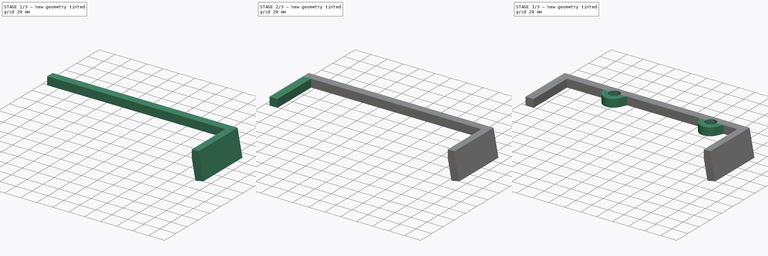
[diagram: build sequence overview — one tinted view per stage of 3, left to right]
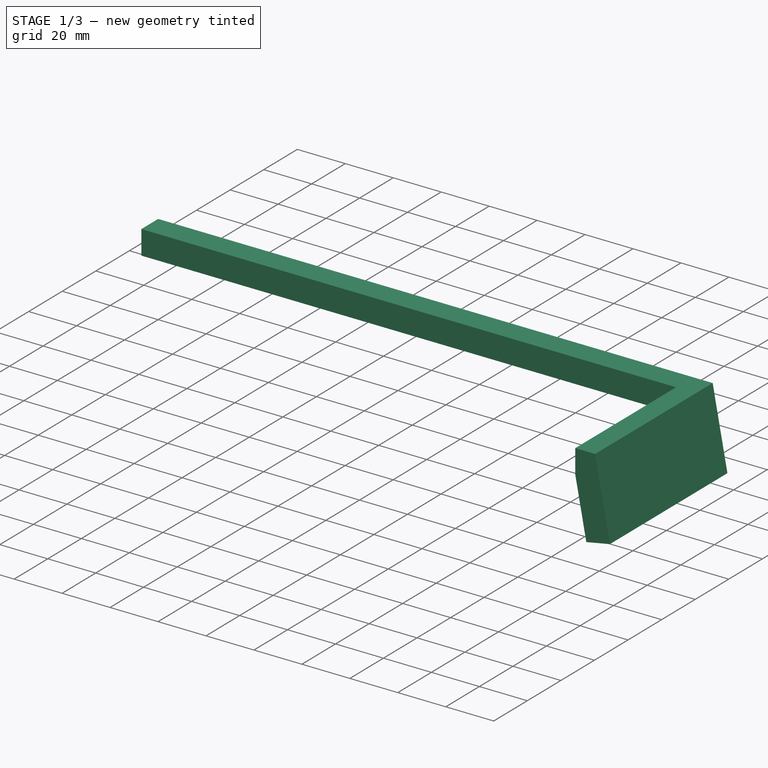
[diagram: stage 1 of 3 — iso view after this stage's code; geometry added in this stage tinted green]
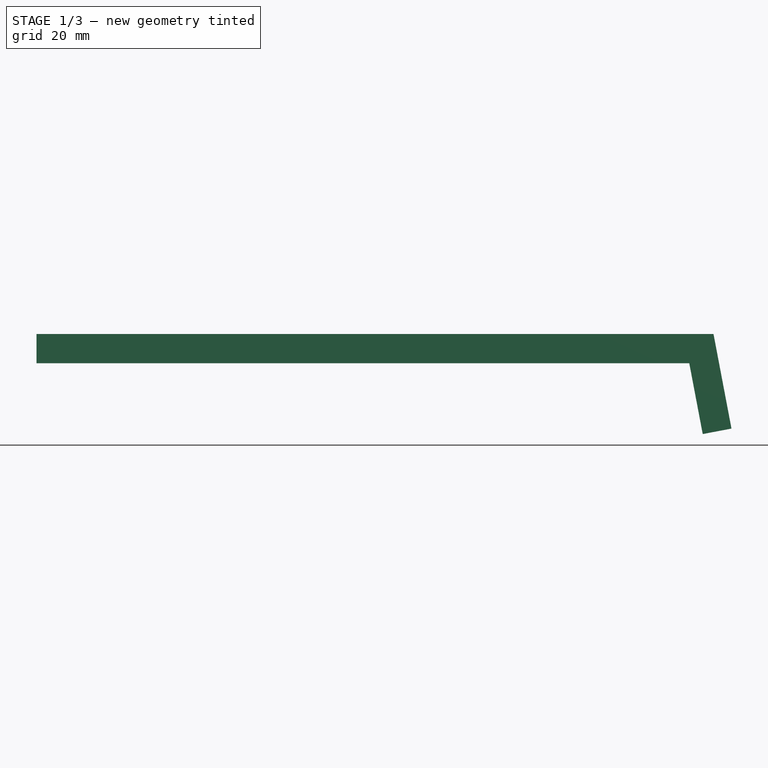
[diagram: stage 1 of 3 — front view after this stage's code; geometry added in this stage tinted green]
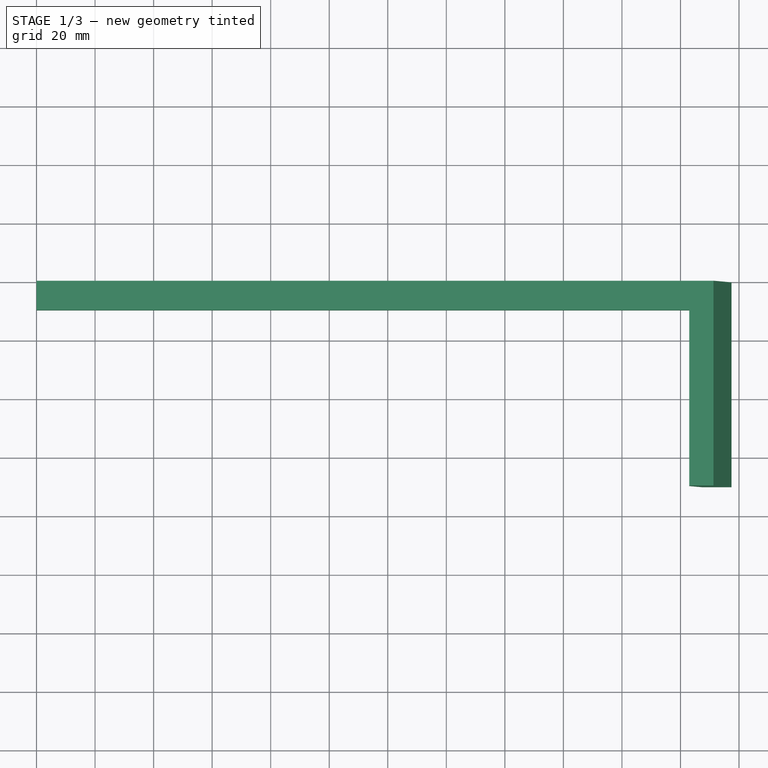
[diagram: stage 1 of 3 — top view after this stage's code; geometry added in this stage tinted green]
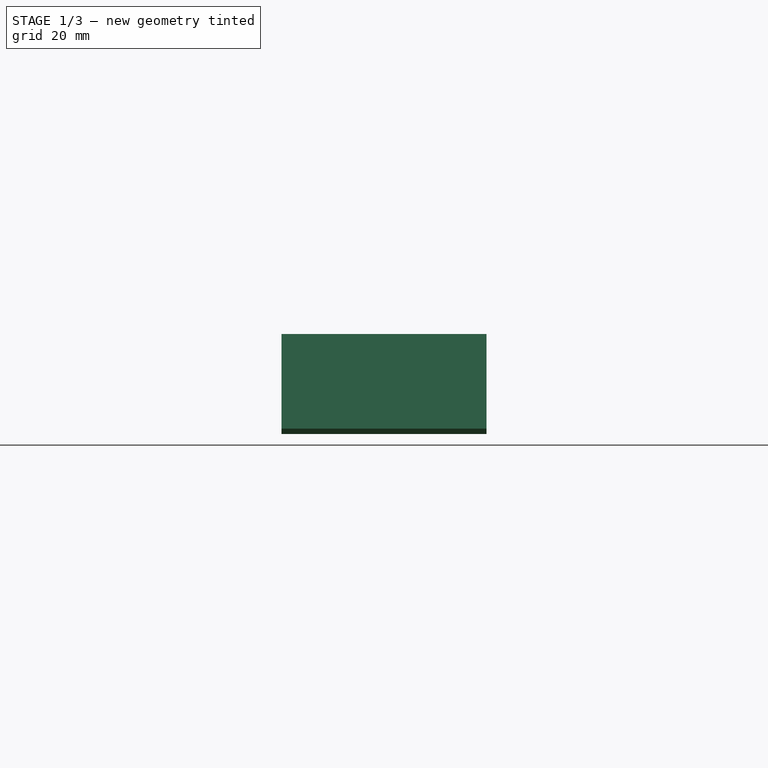
[diagram: stage 1 of 3 — right view after this stage's code; geometry added in this stage tinted green]
FCSTD DOCUMENT  (FreeCAD 0.20R)
Label: HydroBrace
License: All rights reserved
LicenseURL: http://en.wikipedia.org/wiki/All_rights_reserved
objects: Sketcher::SketchObject×8, PartDesign::Pad×4, Spreadsheet::Sheet×1, PartDesign::Hole×1, PartDesign::Body×1
note: 19 computed .brp shape members not serialized (recipe doc carries the construction recipe); baked Part::Feature solids carry a one-line shape summary decoded from their .brp

FEATURE [Sketcher::SketchObject] Sketch  label="brace body sketch"
  FullyConstrained = true
  MapMode = 5
  Placement = pos=(0,0,0) rot=(1,0,0;1.5708rad)
  Support = -> [XZ_Plane]
  expr: Constraints[7] = Spreadsheet.bThick
  sketch-geometry (6):
    g0: LineSegment StartX=0 StartY=0 StartZ=0 EndX=223 EndY=0 EndZ=0
    g1: LineSegment StartX=231.278 StartY=10 StartZ=0 EndX=0 EndY=10 EndZ=0
    g2: LineSegment StartX=0 StartY=10 StartZ=0 EndX=0 EndY=0 EndZ=0
    g3: LineSegment StartX=223 StartY=0 StartZ=0 EndX=227.6 EndY=-24.2 EndZ=0
    g4: LineSegment StartX=227.6 StartY=-24.2 StartZ=0 EndX=237.424 EndY=-22.3326 EndZ=0
    g5: LineSegment StartX=237.424 StartY=-22.3326 StartZ=0 EndX=231.278 EndY=10 EndZ=0
  constraints (17):
    c: Coincident(g1,g2)
    c: Coincident(g2,g0)
    c: Horizontal(g0)
    c: Horizontal(g1)
    c: Vertical(g2)
    c: Coincident(g0,g-1)
    c: Distance(g0) = 223
    c: Distance(g2) = 10
    c: Coincident(g3,g4)
    c: Coincident(g4,g5)
    c: Coincident(g3,g0)
    c: DistanceX(g0,g3) = 4.6
    c: DistanceY(g3,g0) = 24.2
    c: Equal(g4,g2)
    c: Parallel(g5,g3)
    c: Coincident(g1,g5)
    c: Perpendicular(g3,g4)
FEATURE [PartDesign::Pad] Pad  label="brace body"
  Direction = (0,-1,-2e-16)
  Length = 10
  Length2 = 10
  Placement = pos=(0,0,0) rot=(1,0,0;1.5708rad)
  Profile = -> Sketch
  ReferenceAxis = -> Sketch [N_Axis]
  Type = 0
  expr: Length = Spreadsheet.bdepth
FEATURE [Sketcher::SketchObject] Sketch001  label="brace long end sketch"
  AttachmentOffset = pos=(0,0,10) rot=(0,0,1;0rad)
  ExternalGeometry = -> [Pad]
  FullyConstrained = true
  MapMode = 5
  Placement = pos=(0,-10,-2.2e-15) rot=(1,0,0;1.5708rad)
  Support = -> [XZ_Plane]
  expr: .AttachmentOffset.Base.z = <<brace body>>.Length
  sketch-geometry (9):
    g0: LineSegment StartX=0 StartY=10 StartZ=0 EndX=10 EndY=10 EndZ=0
    g1: LineSegment StartX=10 StartY=10 StartZ=0 EndX=10 EndY=0 EndZ=0
    g2: LineSegment StartX=10 StartY=0 StartZ=0 EndX=0 EndY=0 EndZ=0
    g3: LineSegment StartX=0 StartY=0 StartZ=0 EndX=0 EndY=10 EndZ=0
    g4: LineSegment StartX=223 StartY=0 StartZ=0 EndX=227.6 EndY=-24.2 EndZ=0
    g5: LineSegment StartX=227.6 StartY=-24.2 StartZ=0 EndX=237.424 EndY=-22.3326 EndZ=0
    g6: LineSegment StartX=237.424 StartY=-22.3326 StartZ=0 EndX=231.278 EndY=10 EndZ=0
    g7: LineSegment StartX=223 StartY=0 StartZ=0 EndX=223 EndY=10 EndZ=0
    g8: LineSegment StartX=223 StartY=10 StartZ=0 EndX=231.278 EndY=10 EndZ=0
  constraints (22):
    c: Coincident(g0,g1)
    c: Coincident(g1,g2)
    c: Coincident(g2,g3)
    c: Coincident(g3,g0)
    c: Horizontal(g0)
    c: Horizontal(g2)
    c: Vertical(g1)
    c: Vertical(g3)
    c: Coincident(g0,g-5)
    c: PointOnObject(g1,g-1)
    c: Distance(g0) = 10
    c: Coincident(g4,g-3)
    c: Coincident(g4,g-3)
    c: Coincident(g5,g4)
    c: Coincident(g5,g-4)
    c: Coincident(g6,g5)
    c: Coincident(g6,g-4)
    c: Coincident(g7,g4)
    c: Coincident(g8,g7)
    c: Coincident(g8,g6)
    c: Horizontal(g8)
    c: Vertical(g7)
FEATURE [PartDesign::Pad] Pad001  label="brace long end"
  BaseFeature = -> Pad
  Direction = (0,-1,-2e-16)
  Length = 60
  Length2 = 10
  Placement = pos=(0,0,0) rot=(1,0,0;1.5708rad)
  Profile = -> Sketch001
  ReferenceAxis = -> Sketch001 [N_Axis]
  Type = 0
  expr: Length = Spreadsheet.longend
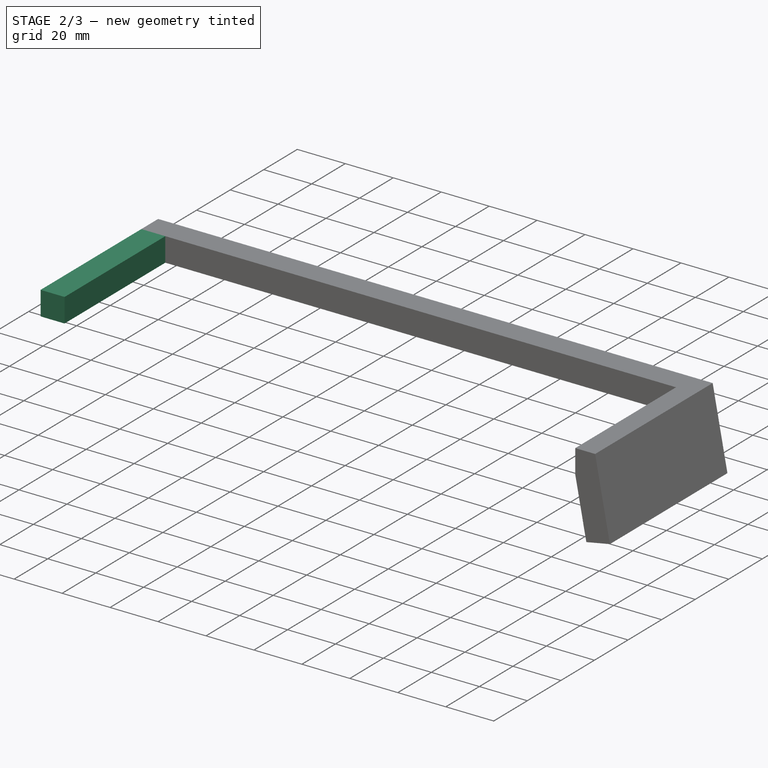
[diagram: stage 2 of 3 — iso view after this stage's code; geometry added in this stage tinted green]
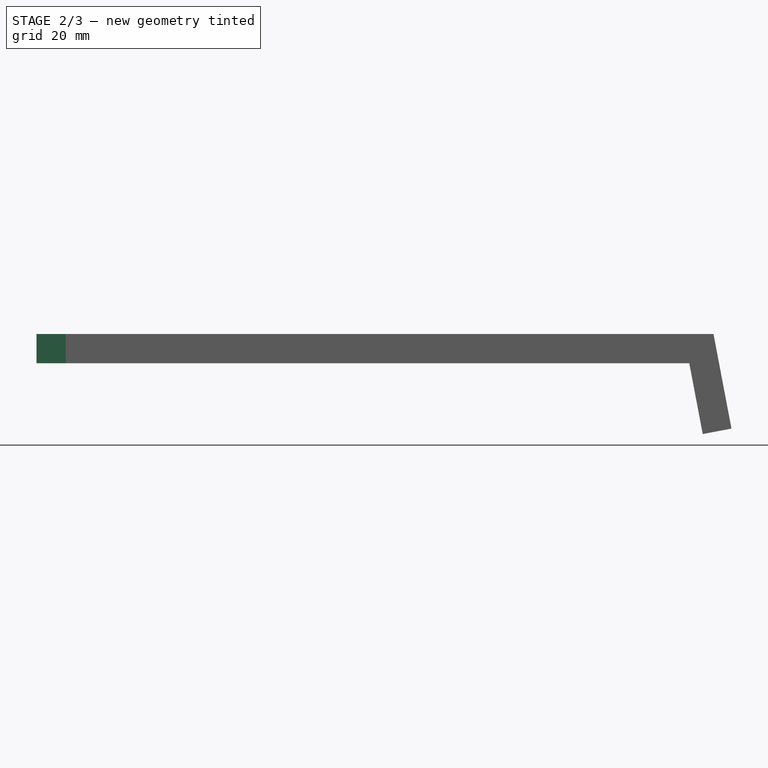
[diagram: stage 2 of 3 — front view after this stage's code; geometry added in this stage tinted green]
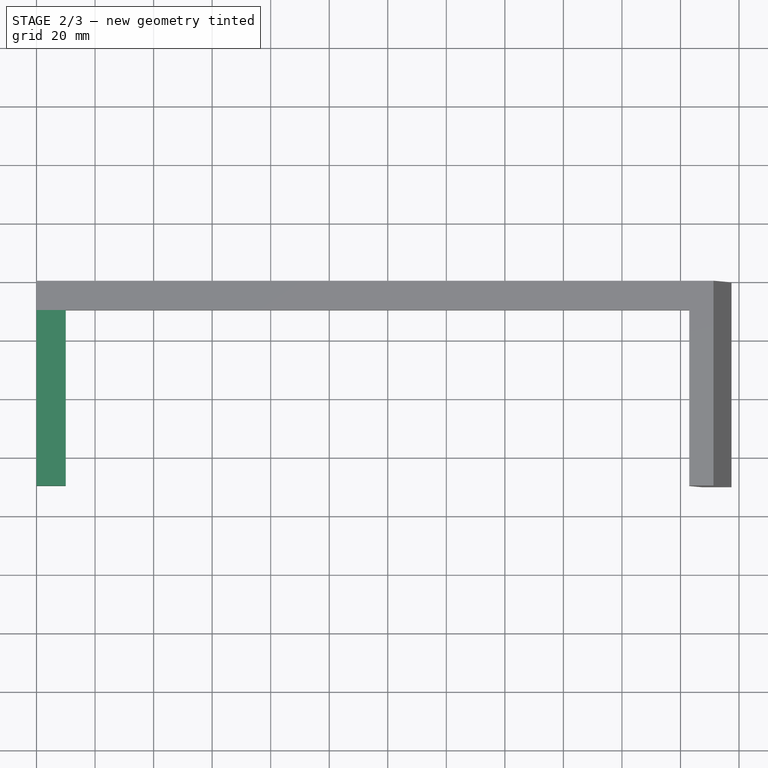
[diagram: stage 2 of 3 — top view after this stage's code; geometry added in this stage tinted green]
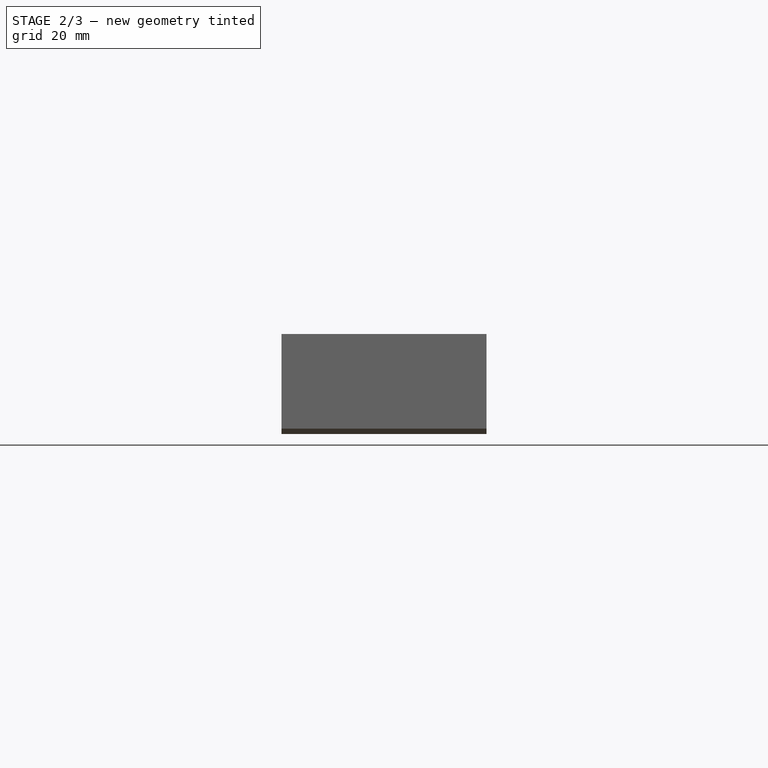
[diagram: stage 2 of 3 — right view after this stage's code; geometry added in this stage tinted green]
FEATURE [Spreadsheet::Sheet] Spreadsheet
  cells = A1=bThick; B1(bThick)=10; C1=brace thickness, z axis height; A2=bdepth; B2(bdepth)=10; C2=brace depth, pad length; A3=longend; B3(longend)=60; C3=long end extrusion length; A4=shortend; B4(shortend)=60; C4=short end extrusion length; A5=tab1pos; B5(tab1pos)=70; C5=bolt tab 1 position; A6=tab2pos; B6(tab2pos)=190.7; C6=bolt tab 2 position; A7=boltDia; B7(boltDia)=13; C7=clearance hole dia for bolt ; A8=boltHead; B8(boltHead)=20; C8=bolt head clearance diameter; A9=tabThick; B9(tabThick)=10; C9=bolt tab thickness, not used; tabs are bThick tall; A10=tab1len; B10(tab1len)=25; C10=length of tab 1 in y axis; A11=tab2len; B11(tab2len)=25; C11=length of tab 2 in y axis; A12=tabAngle; B12(tabAngle)=50; C12=Included angle of tab projection; A13=tabwidth; B13(tabwidth)=30; C13=width of tab base; A14=tabNose; B14(tabNose)=25; C14=diameter of tab nose; A15=hole1Y; B15(hole1Y)==$B7 / 2 + 4.6; C15=y position of the hole in tab 1; A16=hole2Y; B16(hole2Y)==$B7 / 2 + 4.6; C16=y position of the hold in tab 2; A17=boltHeadThick; B17(boltHeadThick)=5; C17=depth of tab counterbore; thickness of bolt head
FEATURE [Sketcher::SketchObject] Sketch002  label="tabs sketch 1"
  AttachmentOffset = pos=(0,0,0) rot=(1,0,0;3.14159rad)
  ExternalGeometry = -> [Pad001]
  FullyConstrained = true
  MapMode = 5
  Placement = pos=(0,0,0) rot=(1,0,0;3.14159rad)
  Support = -> [XY_Plane]
  sketch-geometry (24):
    g0: LineSegment StartX=52.5 StartY=18.9992 StartZ=0 EndX=50 EndY=10 EndZ=0
    g1: LineSegment StartX=80 StartY=10 StartZ=0 EndX=77.5 EndY=18.9992 EndZ=0
    g2: LineSegment StartX=80 StartY=10 StartZ=0 EndX=80 EndY=0 EndZ=0
    g3: LineSegment StartX=80 StartY=0 StartZ=0 EndX=50 EndY=0 EndZ=0
    g4: LineSegment StartX=50 StartY=0 StartZ=0 EndX=50 EndY=10 EndZ=0
    g5: ArcOfCircle CenterX=65 CenterY=15.5266 CenterZ=0 NormalX=0 NormalY=0 NormalZ=1 AngleXU=0 Radius=12.9734 StartAngle=0.270971 EndAngle=2.87062
    g6: LineSegment StartX=65 StartY=15.5266 StartZ=0 EndX=52.5 EndY=18.9992 EndZ=0
    g7: LineSegment StartX=65 StartY=15.5266 StartZ=0 EndX=77.5 EndY=18.9992 EndZ=0
    g8: LineSegment StartX=65 StartY=15.5266 StartZ=0 EndX=65 EndY=28.5 EndZ=0
    g9: LineSegment StartX=170.7 StartY=10 StartZ=0 EndX=170.7 EndY=0 EndZ=0
    g10: LineSegment StartX=170.7 StartY=0 StartZ=0 EndX=200.7 EndY=0 EndZ=0
    g11: LineSegment StartX=200.7 StartY=0 StartZ=0 EndX=200.7 EndY=10 EndZ=0
    g12: LineSegment StartX=200.7 StartY=10 StartZ=0 EndX=198.2 EndY=22.7179 EndZ=0
    g13: LineSegment StartX=170.7 StartY=10 StartZ=0 EndX=173.2 EndY=22.7179 EndZ=0
    g14: ArcOfCircle CenterX=185.7 CenterY=20.2608 CenterZ=0 NormalX=0 NormalY=0 NormalZ=1 AngleXU=0 Radius=12.7392 StartAngle=0.194098 EndAngle=2.94749
    g15: LineSegment StartX=173.2 StartY=22.7179 StartZ=0 EndX=185.7 EndY=20.2608 EndZ=0
    g16: LineSegment StartX=185.7 StartY=20.2608 StartZ=0 EndX=198.2 EndY=22.7179 EndZ=0
    g17: LineSegment StartX=185.7 StartY=20.2608 StartZ=0 EndX=185.7 EndY=33 EndZ=0
    g18: Circle CenterX=185.7 CenterY=20.2608 CenterZ=0 NormalX=0 NormalY=0 NormalZ=1 AngleXU=0 Radius=7.5
    g19: LineSegment StartX=185.7 StartY=12.7608 StartZ=0 EndX=185.7 EndY=20.2608 EndZ=0
    g20: LineSegment StartX=65 StartY=15.5266 StartZ=0 EndX=65 EndY=0 EndZ=0
    g21: LineSegment StartX=65 StartY=0 StartZ=0 EndX=65 EndY=7.3 EndZ=0
    g22: Circle CenterX=65 CenterY=13.8 CenterZ=0 NormalX=0 NormalY=0 NormalZ=1 AngleXU=0 Radius=6.5
    g23: GeomPoint X=65 Y=7.3 Z=0
  constraints (67):
    c: Coincident(g2,g3)
    c: Coincident(g3,g4)
    c: Horizontal(g3)
    c: Vertical(g2)
    c: Vertical(g4)
    c: PointOnObject(g2,g-1)
    c: Coincident(g5,g0)
    c: Coincident(g5,g1)
    c: Coincident(g6,g5)
    c: Coincident(g6,g0)
    c: Coincident(g7,g5)
    c: Coincident(g7,g1)
    c: Angle(g0,g6) = 1.5708
    c: Angle(g7,g1) = 1.5708
    c: Equal(g0,g1)
    c: DistanceX(g0,g1) = 25
    c: Coincident(g0,g4)
    c: Coincident(g2,g1)
    c: DistanceX(g0,g1) = 30
    c: Coincident(g8,g5)
    c: Vertical(g8)
    c: Equal(g8,g7)
    c: DistanceY(g3,g8) = 28.5
    c: Equal(g4,g2)
    c: DistanceY(g-3,g0) = 0
    c: DistanceX(g-3,g3) = 50
    c: Coincident(g10,g9)
    c: Horizontal(g10)
    c: Coincident(g11,g10)
    c: Vertical(g11)
    c: Coincident(g12,g11)
    c: Coincident(g13,g9)
    c: Vertical(g9)
    c: Coincident(g14,g13)
    c: Coincident(g12,g14)
    c: Coincident(g15,g13)
    c: Coincident(g15,g14)
    c: Coincident(g16,g14)
    c: Coincident(g16,g12)
    c: Coincident(g17,g14)
    c: PointOnObject(g17,g14)
    c: Vertical(g17)
    c: Equal(g13,g12)
    c: Equal(g9,g11)
    c: Angle(g13,g15) = 1.5708
    c: Angle(g16,g12) = 1.5708
    c: DistanceY(g-3,g9) = 0
    c: DistanceY(g-3,g9) = 0
    c: DistanceY(g9,g17) = 33
    c: Distance(g10) = 30
    c: DistanceX(g13,g12) = 25
    c: DistanceX(g3,g9) = 120.7
    c: Coincident(g18,g14)
    c: PointOnObject(g19,g18)
    c: Coincident(g19,g14)
    c: Vertical(g19)
    c: Distance(g19) = 7.5
    c: Coincident(g20,g5)
    c: PointOnObject(g20,g3)
    c: Vertical(g20)
    c: Coincident(g21,g20)
    c: Diameter(g22) = 13
    c: PointOnObject(g23,g22)
    c: Coincident(g23,g21)
    c: Distance(g21) = 7.3
    c: Vertical(g21)
    c: DistanceX(g21,g22) = 0
FEATURE [Sketcher::SketchObject] Sketch003  label="brace short end sketch"
  AttachmentOffset = pos=(0,0,10) rot=(0,0,1;0rad)
  FullyConstrained = true
  MapMode = 5
  Placement = pos=(0,-10,-2.2e-15) rot=(1,0,0;1.5708rad)
  Support = -> [XZ_Plane]
  expr: .AttachmentOffset.Base.z = <<brace body>>.Length
  expr: Constraints[10] = Spreadsheet.bThick
  sketch-geometry (4):
    g0: LineSegment StartX=0 StartY=10 StartZ=0 EndX=10 EndY=10 EndZ=0
    g1: LineSegment StartX=10 StartY=10 StartZ=0 EndX=10 EndY=0 EndZ=0
    g2: LineSegment StartX=10 StartY=0 StartZ=0 EndX=0 EndY=0 EndZ=0
    g3: LineSegment StartX=0 StartY=0 StartZ=0 EndX=0 EndY=10 EndZ=0
  constraints (11):
    c: Coincident(g0,g1)
    c: Coincident(g1,g2)
    c: Coincident(g2,g3)
    c: Coincident(g3,g0)
    c: Horizontal(g0)
    c: Horizontal(g2)
    c: Vertical(g1)
    c: Vertical(g3)
    c: DistanceX(g0,g0) = 10
    c: Coincident(g2,g-1)
    c: Distance(g3) = 10
FEATURE [PartDesign::Pad] Pad003  label="brace short end"
  BaseFeature = -> Pad001
  Direction = (0,-1,-2e-16)
  Length = 60
  Length2 = 10
  Placement = pos=(0,0,0) rot=(1,0,0;1.5708rad)
  Profile = -> Sketch003
  ReferenceAxis = -> Sketch003 [N_Axis]
  Type = 0
  expr: Length = Spreadsheet.shortend
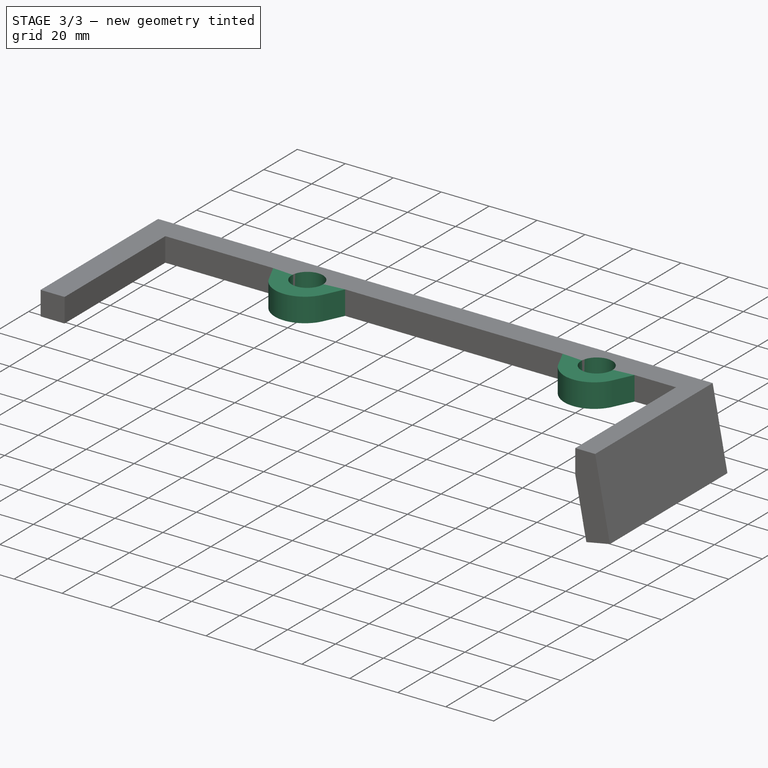
[diagram: stage 3 of 3 — iso view after this stage's code; geometry added in this stage tinted green]
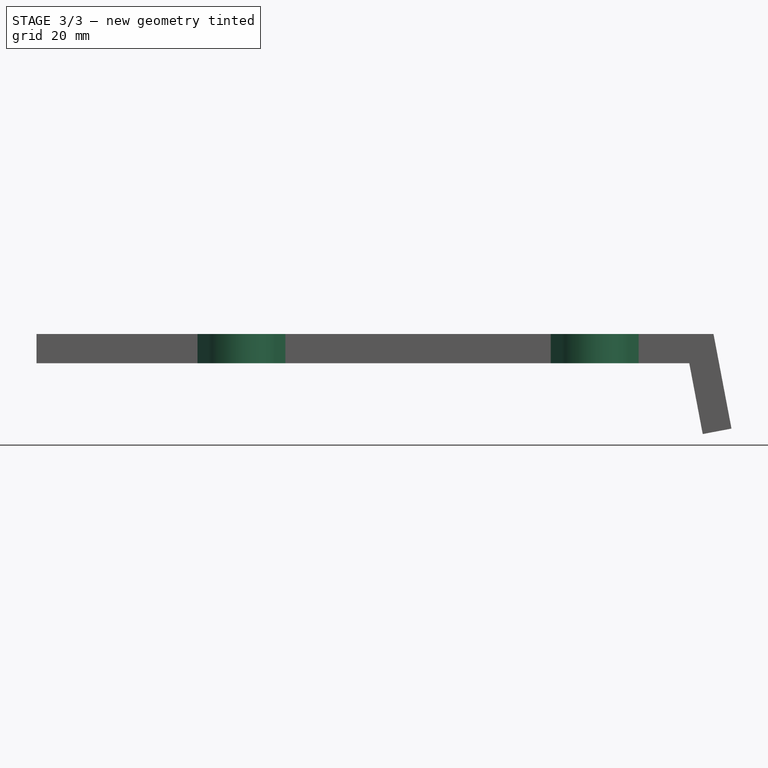
[diagram: stage 3 of 3 — front view after this stage's code; geometry added in this stage tinted green]
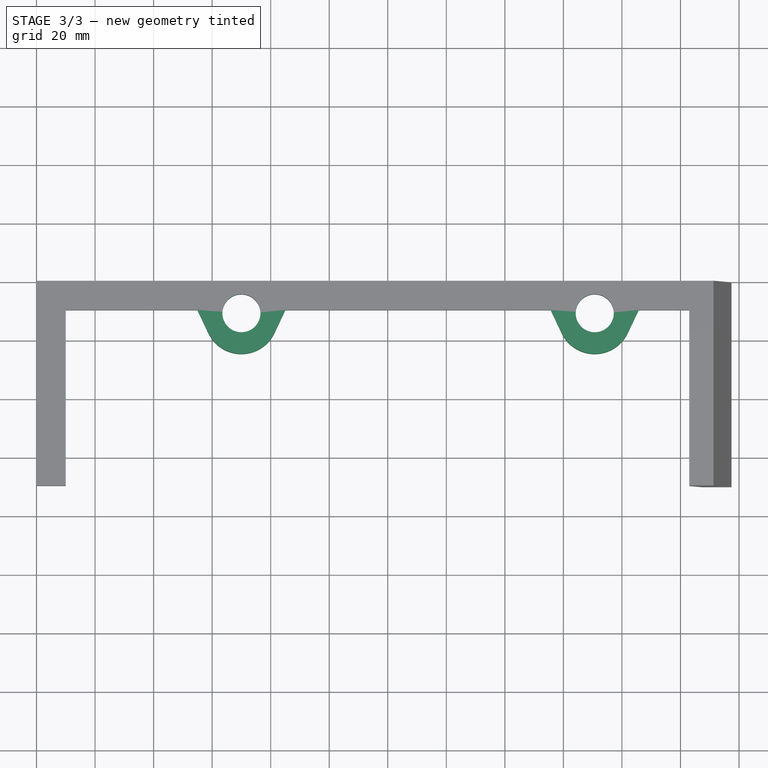
[diagram: stage 3 of 3 — top view after this stage's code; geometry added in this stage tinted green]
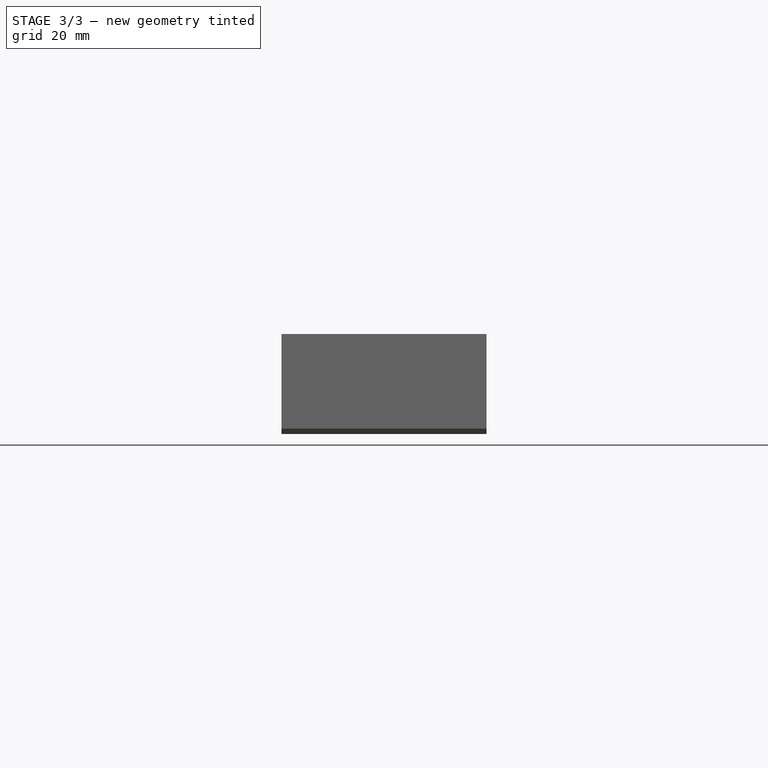
[diagram: stage 3 of 3 — right view after this stage's code; geometry added in this stage tinted green]
FEATURE [Sketcher::SketchObject] Sketch004  label="tabs sketch 2"
  FullyConstrained = true
  MapMode = 5
  Support = -> [XY_Plane]
  expr: Constraints[13] = Spreadsheet.tabNose
  expr: Constraints[16] = Spreadsheet.tab1len
  expr: Constraints[29] = Spreadsheet.tabwidth
  expr: Constraints[30] = Spreadsheet.tabNose
  expr: Constraints[33] = Spreadsheet.tab2len
  expr: Constraints[34] = Spreadsheet.tab1pos
  expr: Constraints[35] = Spreadsheet.tab2pos
  expr: Constraints[36] = Spreadsheet.bdepth
  expr: Constraints[37] = Spreadsheet.bdepth
  expr: Constraints[8] = Spreadsheet.tabwidth
  sketch-geometry (14):
    g0: ArcOfCircle CenterX=70 CenterY=-12.5 CenterZ=0 NormalX=0 NormalY=0 NormalZ=1 AngleXU=0 Radius=12.5 StartAngle=3.58234 EndAngle=5.84244
    g1: LineSegment StartX=55 StartY=-10 StartZ=0 EndX=55 EndY=0 EndZ=0
    g2: LineSegment StartX=55 StartY=0 StartZ=0 EndX=85 EndY=0 EndZ=0
    g3: LineSegment StartX=85 StartY=0 StartZ=0 EndX=85 EndY=-10 EndZ=0
    g4: LineSegment StartX=85 StartY=-10 StartZ=0 EndX=81.3054 EndY=-17.8326 EndZ=0
    g5: LineSegment StartX=55 StartY=-10 StartZ=0 EndX=58.6946 EndY=-17.8326 EndZ=0
    g6: GeomPoint X=70 Y=-25 Z=0
    g7: LineSegment StartX=179.395 StartY=-17.8326 StartZ=0 EndX=175.7 EndY=-10 EndZ=0
    g8: LineSegment StartX=175.7 StartY=-10 StartZ=0 EndX=175.7 EndY=0 EndZ=0
    g9: LineSegment StartX=175.7 StartY=0 StartZ=0 EndX=205.7 EndY=0 EndZ=0
    g10: LineSegment StartX=205.7 StartY=0 StartZ=0 EndX=205.7 EndY=-10 EndZ=0
    g11: LineSegment StartX=205.7 StartY=-10 StartZ=0 EndX=202.005 EndY=-17.8326 EndZ=0
    g12: ArcOfCircle CenterX=190.7 CenterY=-12.5 CenterZ=0 NormalX=0 NormalY=0 NormalZ=1 AngleXU=0 Radius=12.5 StartAngle=3.58234 EndAngle=5.84244
    g13: GeomPoint X=190.7 Y=-25 Z=0
  constraints (38):
    c: PointOnObject(g1,g-1)
    c: Vertical(g1)
    c: Coincident(g1,g2)
    c: PointOnObject(g2,g-1)
    c: Coincident(g2,g3)
    c: Vertical(g3)
    c: Coincident(g3,g4)
    c: Coincident(g1,g5)
    c: DistanceX(g1,g2) = 30
    c: Tangent(g0,g5) = -1.5708
    c: Tangent(g0,g4) = 1.5708
    c: Horizontal(g1,g3)
    c: Horizontal(g0,g0)
    c: Diameter(g0) = 25
    c: PointOnObject(g6,g0)
    c: Vertical(g0,g6)
    c: DistanceY(g6,g2) = 25
    c: Coincident(g7,g8)
    c: PointOnObject(g8,g-1)
    c: Vertical(g8)
    c: Coincident(g8,g9)
    c: PointOnObject(g9,g-1)
    c: Coincident(g9,g10)
    c: Vertical(g10)
    c: Coincident(g10,g11)
    c: Tangent(g7,g12) = 1.5708
    c: Tangent(g11,g12) = 1.5708
    c: Horizontal(g7,g10)
    c: Horizontal(g7,g11)
    c: DistanceX(g8,g9) = 30
    c: Diameter(g12) = 25
    c: PointOnObject(g13,g12)
    c: Vertical(g13,g12)
    c: DistanceY(g13,g8) = 25
    c: DistanceX(g-1,g0) = 70
    c: DistanceX(g-1,g12) = 190.7
    c: Distance(g1) = 10
    c: Distance(g8) = 10
FEATURE [PartDesign::Pad] Pad004  label="tabs"
  BaseFeature = -> Pad003
  Direction = (0,0,1)
  Length = 10
  Length2 = 10
  Placement = pos=(0,0,0) rot=(1,0,0;1.5708rad)
  Profile = -> Sketch004
  ReferenceAxis = -> Sketch004 [N_Axis]
  Type = 0
  expr: Length = Spreadsheet.bThick
FEATURE [Sketcher::SketchObject] Sketch005  label="tab holes"
  AttachmentOffset = pos=(0,0,10) rot=(0,0,1;0rad)
  FullyConstrained = false
  MapMode = 5
  Placement = pos=(0,0,10) rot=(0,0,1;0rad)
  Support = -> [XY_Plane]
  expr: .AttachmentOffset.Base.z = Spreadsheet.bThick
  expr: Constraints[0] = Spreadsheet.tab1pos
  expr: Constraints[1] = Spreadsheet.tab2pos
  expr: Constraints[2] = Spreadsheet.hole1Y
  expr: Constraints[3] = Spreadsheet.hole2Y
  sketch-geometry (2):
    g0: Circle CenterX=70 CenterY=-11.1 CenterZ=0 NormalX=0 NormalY=0 NormalZ=1 AngleXU=0 Radius=4.17659
    g1: Circle CenterX=190.7 CenterY=-11.1 CenterZ=0 NormalX=0 NormalY=0 NormalZ=1 AngleXU=0 Radius=3.54344
  constraints (4):
    c: DistanceX(g-1,g0) = 70
    c: DistanceX(g-1,g1) = 190.7
    c: DistanceY(g0,g-1) = 11.1
    c: DistanceY(g1,g-1) = 11.1
FEATURE [PartDesign::Hole] Hole
  BaseFeature = -> Pad004
  CustomThreadClearance = 0
  Depth = 483.227
  DepthType = 1
  Diameter = 13
  DrillForDepth = false
  DrillPoint = 1
  DrillPointAngle = 118
  HoleCutCountersinkAngle = 90
  HoleCutCustomValues = false
  HoleCutDepth = 5
  HoleCutDiameter = 20
  HoleCutType = 0
  ModelThread = false
  Placement = pos=(0,0,0) rot=(1,0,0;1.5708rad)
  Profile = -> Sketch005
  Tapered = false
  TaperedAngle = 90
  ThreadClass = 0
  ThreadDepth = 483.227
  ThreadDepthType = 0
  ThreadDirection = 0
  ThreadFit = 0
  ThreadSize = 0
  ThreadType = 0
  Threaded = false
  UseCustomThreadClearance = false
  expr: Diameter = Spreadsheet.boltDia
  expr: HoleCutDepth = Spreadsheet.boltHeadThick
  expr: HoleCutDiameter = Spreadsheet.boltHead
FEATURE [PartDesign::Body] Body
  Group = -> [Sketch,Pad,Sketch001,Pad001,Sketch002,Sketch003,Pad003,Sketch004,Pad004,Sketch005,Hole]
  Origin = -> Origin
  Tip = -> Hole
FEATURE [Sketcher::SketchObject] Sketch006
  ExternalGeometry = -> [Hole]
  FullyConstrained = false
  expr: Constraints[0] = 222 + 3.9199 / 2
  expr: Constraints[45] = 15 / 2 + 4.6
  expr: Constraints[53] = 15 / 2 + 4.6
  expr: Constraints[64] = 3.9199 / 2
  sketch-geometry (31):
    g0: LineSegment StartX=0 StartY=-2.2e-15 StartZ=0 EndX=223.96 EndY=-2.2e-15 EndZ=0
    g1: LineSegment StartX=0 StartY=-2.2e-15 StartZ=0 EndX=0 EndY=-70 EndZ=0
    g2: LineSegment StartX=0 StartY=-70 StartZ=0 EndX=10 EndY=-70 EndZ=0
    g3: LineSegment StartX=10 StartY=-70 StartZ=0 EndX=10 EndY=-10 EndZ=0
    g4: LineSegment StartX=10 StartY=-10 StartZ=0 EndX=55 EndY=-10 EndZ=0
    g5: LineSegment StartX=55 StartY=-10 StartZ=0 EndX=58.6946 EndY=-17.8326 EndZ=0
    g6: LineSegment StartX=81.3054 StartY=-17.8326 StartZ=0 EndX=85 EndY=-10 EndZ=0
    g7: LineSegment StartX=85 StartY=-10 StartZ=0 EndX=175.7 EndY=-10 EndZ=0
    g8: LineSegment StartX=175.7 StartY=-10 StartZ=0 EndX=179.395 EndY=-17.8326 EndZ=0
    g9: LineSegment StartX=202.005 StartY=-17.8326 StartZ=0 EndX=205.7 EndY=-10 EndZ=0
    g10: LineSegment StartX=249.92 StartY=-2.2e-15 StartZ=0 EndX=249.92 EndY=-70 EndZ=0
    g11: ArcOfCircle CenterX=70 CenterY=-12.5 CenterZ=0 NormalX=0 NormalY=0 NormalZ=1 AngleXU=0 Radius=12.5 StartAngle=3.58234 EndAngle=5.84244
    g12: LineSegment StartX=70 StartY=-12.5 StartZ=0 EndX=58.6946 EndY=-17.8326 EndZ=0
    g13: LineSegment StartX=70 StartY=-12.5 StartZ=0 EndX=81.3054 EndY=-17.8326 EndZ=0
    g14: LineSegment StartX=179.395 StartY=-17.8326 StartZ=0 EndX=190.7 EndY=-12.5 EndZ=0
    g15: LineSegment StartX=190.7 StartY=-12.5 StartZ=0 EndX=202.005 EndY=-17.8326 EndZ=0
    g16: ArcOfCircle CenterX=190.7 CenterY=-12.5 CenterZ=0 NormalX=0 NormalY=0 NormalZ=1 AngleXU=0 Radius=12.5 StartAngle=3.58234 EndAngle=5.84244
    g17: Circle CenterX=70 CenterY=-12.1 CenterZ=0 NormalX=0 NormalY=0 NormalZ=1 AngleXU=0 Radius=7.5
    g18: LineSegment StartX=85 StartY=-2.2e-15 StartZ=0 EndX=70 EndY=0 EndZ=0
    g19: LineSegment StartX=55 StartY=0 StartZ=0 EndX=70 EndY=0 EndZ=0
    g20: LineSegment StartX=70 StartY=0 StartZ=0 EndX=70 EndY=-12.1 EndZ=0
    g21: LineSegment StartX=175.7 StartY=0 StartZ=0 EndX=190.7 EndY=0 EndZ=0
    g22: LineSegment StartX=190.7 StartY=0 StartZ=0 EndX=205.7 EndY=0 EndZ=0
    g23: LineSegment StartX=190.7 StartY=0 StartZ=0 EndX=190.7 EndY=-12.1 EndZ=0
    g24: Circle CenterX=190.7 CenterY=-12.1 CenterZ=0 NormalX=0 NormalY=0 NormalZ=1 AngleXU=0 Radius=7.5
    g25: LineSegment StartX=205.7 StartY=-10 StartZ=0 EndX=223.96 EndY=-10 EndZ=0
    g26: LineSegment StartX=225.92 StartY=-2.2e-15 StartZ=0 EndX=223.96 EndY=-2.2e-15 EndZ=0
    g27: LineSegment StartX=223.96 StartY=-10 StartZ=0 EndX=225.92 EndY=-10 EndZ=0
    g28: LineSegment StartX=225.92 StartY=-2.2e-15 StartZ=0 EndX=249.92 EndY=-2.2e-15 EndZ=0
    g29: LineSegment StartX=225.92 StartY=-10 StartZ=0 EndX=225.92 EndY=-70 EndZ=0
    g30: LineSegment StartX=225.92 StartY=-70 StartZ=0 EndX=249.92 EndY=-70 EndZ=0
  constraints (75):
    c: DistanceX(g0,g0) = 223.96
    c: Coincident(g1,g-8)
    c: Coincident(g1,g-5)
    c: Coincident(g2,g1)
    c: Coincident(g2,g-6)
    c: Coincident(g3,g2)
    c: Coincident(g3,g-7)
    c: Coincident(g4,g3)
    c: Coincident(g4,g-13)
    c: Coincident(g5,g4)
    c: Coincident(g5,g-13)
    c: Coincident(g6,g-12)
    c: Coincident(g6,g-12)
    c: Coincident(g7,g6)
    c: Coincident(g7,g-15)
    c: Coincident(g8,g7)
    c: Coincident(g8,g-15)
    c: Coincident(g9,g-16)
    c: Coincident(g9,g-16)
    c: Vertical(g10)
    c: Equal(g10,g1)
    c: Coincident(g0,g1)
    c: Coincident(g11,g5)
    c: Coincident(g11,g6)
    c: Coincident(g12,g11)
    c: Coincident(g12,g5)
    c: Coincident(g13,g11)
    c: Coincident(g13,g6)
    c: Perpendicular(g5,g12)
    c: Coincident(g14,g8)
    c: Coincident(g15,g14)
    c: Perpendicular(g8,g14)
    c: Perpendicular(g9,g15)
    c: Coincident(g16,g14)
    c: Coincident(g16,g8)
    c: Coincident(g16,g9)
    c: Diameter(g17) = 15
    c: Coincident(g18,g-10)
    c: Coincident(g19,g-9)
    c: Coincident(g19,g18)
    c: Horizontal(g19)
    c: Equal(g19,g18)
    c: Coincident(g20,g18)
    c: Coincident(g20,g17)
    c: Vertical(g20)
    c: Distance(g20) = 12.1
    c: Coincident(g21,g-14)
    c: Coincident(g22,g21)
    c: Coincident(g22,g-14)
    c: Equal(g22,g21)
    c: Horizontal(g21)
    c: Coincident(g23,g21)
    c: Perpendicular(g21,g23)
    c: Distance(g23) = 12.1
    c: Coincident(g24,g23)
    c: Diameter(g24) = 15
    c: Horizontal(g0)
    c: Coincident(g25,g9)
    c: Horizontal(g25)
    c: Coincident(g26,g0)
    c: Horizontal(g26)
    c: Coincident(g27,g25)
    c: Horizontal(g27)
    c: Equal(g26,g27)
    c: Distance(g26) = 1.95995
    c: Coincident(g28,g26)
    c: Coincident(g28,g10)
    c: Horizontal(g28)
    c: Coincident(g29,g27)
    c: Vertical(g29)
    c: Coincident(g30,g29)
    c: Coincident(g30,g10)
    c: Perpendicular(g10,g30)
    c: Equal(g28,g30)
    c: Distance(g28) = 24
FEATURE [Sketcher::SketchObject] Sketch007
  ExternalGeometry = -> [Sketch006]
  FullyConstrained = true
  sketch-geometry (1):
    g0: LineSegment StartX=223.96 StartY=0 StartZ=0 EndX=223.96 EndY=-10 EndZ=0
  constraints (2):
    c: Coincident(g0,g-3)
    c: Coincident(g0,g-4)
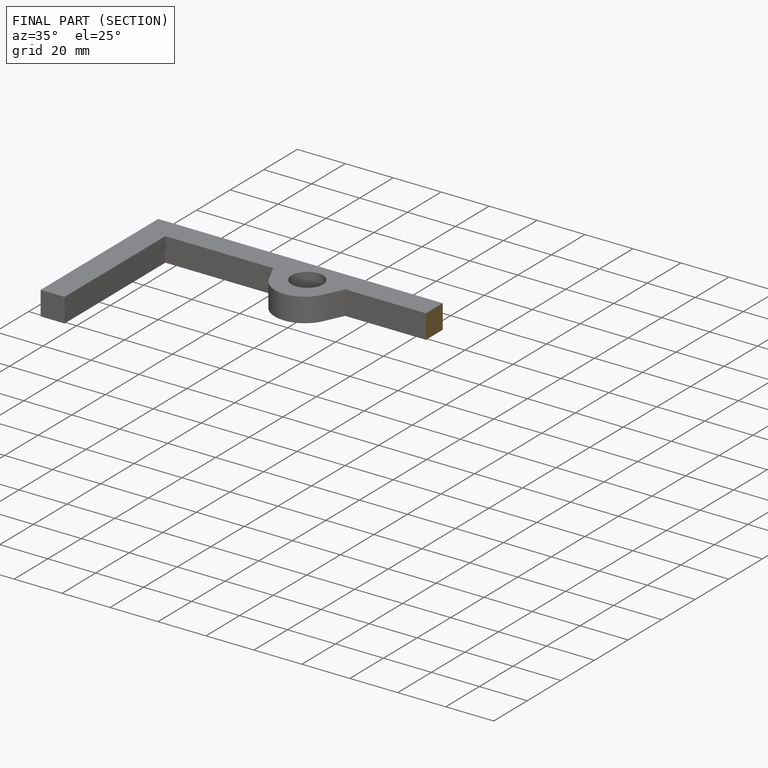
[diagram: finished part — half-section view (interior)]
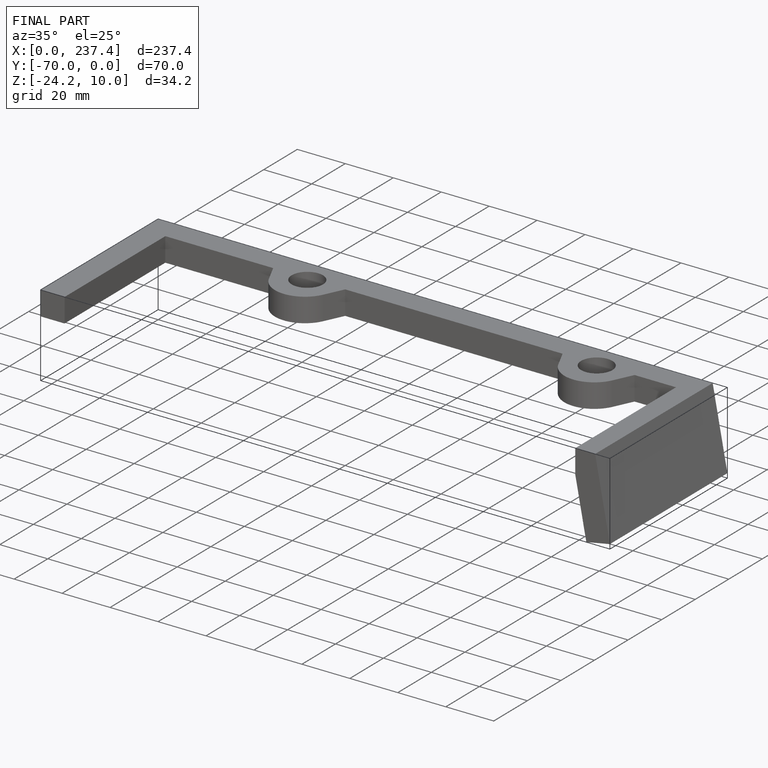
[diagram: finished part — iso view with bounding-box wireframe]
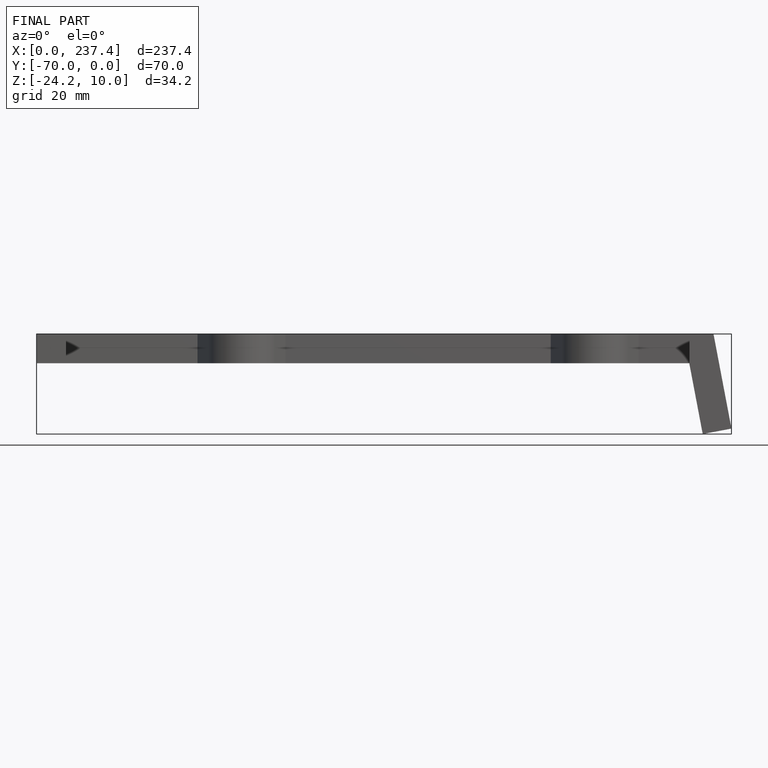
[diagram: finished part — front view with bounding-box wireframe]
